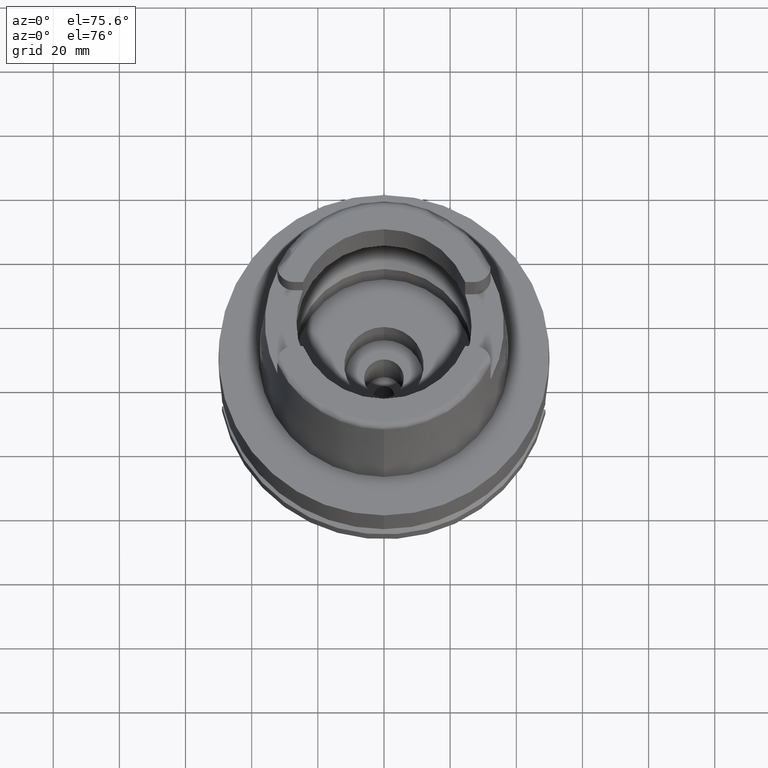
[diagram: clean part render]
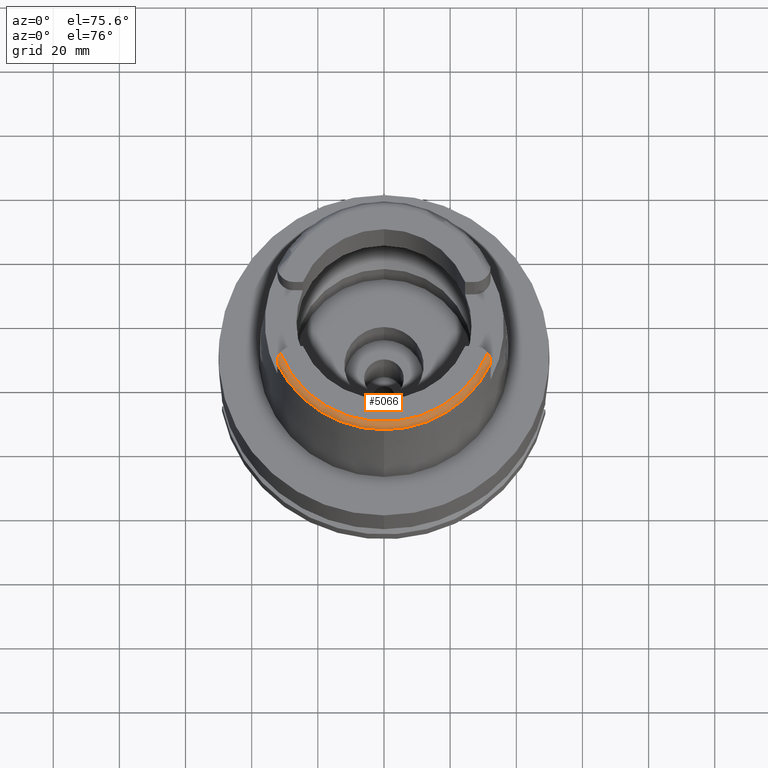
[diagram: same view with one face highlighted and labeled with its STEP entity id]
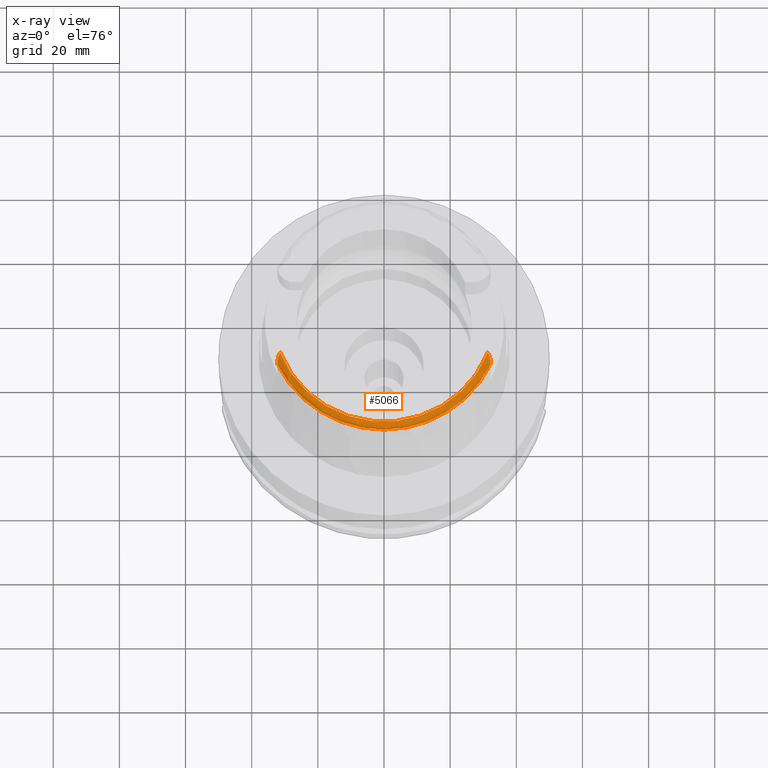
[diagram: x-ray of the same camera — body ghosted, the highlighted face saturated]
A machine part, auxiliary view. The second image highlights one B-rep face of the part: STEP entity #5066.
The next image is the same camera in x-ray: the body ghosted, the highlighted face saturated — about 0% of this face is hidden behind the body in this view.
In plain terms, the highlighted toroidal blend (fillet) surface has major radius 33.5974 mm and minor (blend) radius 2 mm.
Its self-contained STEP definition (entity closure, byte-faithful):
#6 = CARTESIAN_POINT ( 'NONE',  ( -32.23171094347167553, -14.46712823075120014, 49.00013395289571605 ) ) ;
#124 = VERTEX_POINT ( 'NONE', #1293 ) ;
#167 = CARTESIAN_POINT ( 'NONE',  ( 31.98553791915036015, -13.30520670040278652, 49.70524621942952592 ) ) ;
#286 = CARTESIAN_POINT ( 'NONE',  ( 0.0000000000000000000, 0.0000000000000000000, 48.09987853799000135 ) ) ;
#396 = CARTESIAN_POINT ( 'NONE',  ( -32.24999491821000674, -15.06448486630999817, 48.09973212705000378 ) ) ;
#481 = CARTESIAN_POINT ( 'NONE',  ( -31.87922443488010771, -13.01732756175526973, 49.82080695204480492 ) ) ;
#501 = CARTESIAN_POINT ( 'NONE',  ( 32.25000552016999222, -15.06439826353000022, 48.10004191699000131 ) ) ;
#624 = B_SPLINE_CURVE_WITH_KNOTS ( 'NONE', 3,
 ( #4860, #5397, #1535, #3597, #1005, #2713, #2302, #4020, #167, #2882, #5112, #5051, #4694, #4999, #2854, #3761, #1602, #4639, #3851, #747, #5571, #1143, #1169, #1628, #1694, #4601 ),
 .UNSPECIFIED., .F., .F.,
 ( 4, 2, 1, 1, 2, 2, 1, 1, 2, 2, 2, 2, 2, 2, 4 ),
 ( 0.0000000000000000000, 0.2499999999999704126, 0.3124999999999639178, 0.3437499999999611977, 0.3593749999999593103, 0.3749999999999573674, 0.4374999999999556466, 0.4687499999999560352, 0.4843749999999567568, 0.4999999999999575895, 0.6249999999999618083, 0.6874999999999644729, 0.7187499999999678035, 0.7499999999999710232, 1.000000000000000000 ),
 .UNSPECIFIED. ) ;
#679 = CARTESIAN_POINT ( 'NONE',  ( 31.35385269249000473, -12.07161079256999869, 50.00000000000000000 ) ) ;
#704 = ORIENTED_EDGE ( 'NONE', *, *, #1112, .F. ) ;
#710 = CARTESIAN_POINT ( 'NONE',  ( 32.25000000000000000, -14.98829434879570144, 48.40080381485913108 ) ) ;
#726 = ORIENTED_EDGE ( 'NONE', *, *, #3493, .F. ) ;
#747 = CARTESIAN_POINT ( 'NONE',  ( 32.21572274608582376, -14.31196498071052581, 49.12447272064628834 ) ) ;
#787 = CARTESIAN_POINT ( 'NONE',  ( -32.07004199080587625, -13.57330785709262067, 49.58158619972915915 ) ) ;
#807 = DIRECTION ( 'NONE',  ( 0.9332215253017949186, -0.3593015233941980191, 0.0000000000000000000 ) ) ;
#812 = CARTESIAN_POINT ( 'NONE',  ( -32.12253081748730921, -13.78179689435552646, 49.46955099188004112 ) ) ;
#837 = CARTESIAN_POINT ( 'NONE',  ( -32.23862832623470354, -14.55635928709210525, 48.92177505650224134 ) ) ;
#871 = CARTESIAN_POINT ( 'NONE',  ( -32.24916233882190397, -14.77263700673749547, 48.70369021601410964 ) ) ;
#901 = CARTESIAN_POINT ( 'NONE',  ( -32.25000000000000000, -14.89000000000000057, 48.54599893821999501 ) ) ;
#1005 = CARTESIAN_POINT ( 'NONE',  ( 31.89389859079044243, -13.05691725044793472, 49.80495488286983630 ) ) ;
#1112 = EDGE_CURVE ( 'NONE', #5221, #1724, #1837, .T. ) ;
#1143 = CARTESIAN_POINT ( 'NONE',  ( 32.22454672122766794, -14.39152243580885226, 49.06239283984400146 ) ) ;
#1169 = CARTESIAN_POINT ( 'NONE',  ( 32.22728172343637709, -14.41905331685014247, 49.04008642593382916 ) ) ;
#1207 = CARTESIAN_POINT ( 'NONE',  ( -32.14037849970285521, -13.86058879465067584, 49.42463837494213408 ) ) ;
#1247 = DIRECTION ( 'NONE',  ( 0.9060280460804950309, -0.4232176505245974218, 0.0000000000000000000 ) ) ;
#1285 = DIRECTION ( 'NONE',  ( 0.0000000000000000000, 0.0000000000000000000, 1.000000000000000000 ) ) ;
#1293 = CARTESIAN_POINT ( 'NONE',  ( -31.35385269249000473, -12.07161079256999869, 50.00000000000000000 ) ) ;
#1295 = CARTESIAN_POINT ( 'NONE',  ( -32.24474321745522332, -14.66048232297775122, 48.82251155249096541 ) ) ;
#1359 = CARTESIAN_POINT ( 'NONE',  ( -31.99786078065657691, -13.34154365229903583, 49.68944155567197640 ) ) ;
#1429 = EDGE_CURVE ( 'NONE', #4781, #124, #3895, .T. ) ;
#1535 = CARTESIAN_POINT ( 'NONE',  ( 31.68020600901800421, -12.57912254839430943, 49.95560507812035667 ) ) ;
#1602 = CARTESIAN_POINT ( 'NONE',  ( 32.16969002447394388, -14.00056148762274688, 49.34200033525557672 ) ) ;
#1612 = EDGE_LOOP ( 'NONE', ( #1683, #704, #2469, #4759, #4670, #1631, #726 ) ) ;
#1628 = CARTESIAN_POINT ( 'NONE',  ( 32.24707751516175591, -14.63424202878992375, 48.86117232757105455 ) ) ;
#1631 = ORIENTED_EDGE ( 'NONE', *, *, #1429, .F. ) ;
#1683 = ORIENTED_EDGE ( 'NONE', *, *, #2753, .F. ) ;
#1694 = CARTESIAN_POINT ( 'NONE',  ( 32.25000000000000000, -14.78364356167547200, 48.70310294642062843 ) ) ;
#1724 = VERTEX_POINT ( 'NONE', #4941 ) ;
#1756 = EDGE_CURVE ( 'NONE', #5293, #4134, #624, .T. ) ;
#1787 = CARTESIAN_POINT ( 'NONE',  ( -32.00343732436304833, -13.35832898212123609, 49.68202067041841019 ) ) ;
#1820 = CARTESIAN_POINT ( 'NONE',  ( 32.25000000000000000, -14.89000000000000057, 48.54599893821999501 ) ) ;
#1837 = CIRCLE ( 'NONE', #5163, 35.59494289391000166 ) ;
#1879 = EDGE_CURVE ( 'NONE', #5293, #124, #2561, .T. ) ;
#1985 = CARTESIAN_POINT ( 'NONE',  ( 32.25000000000000000, -14.89000000000000057, 48.54599893821999501 ) ) ;
#2083 = CARTESIAN_POINT ( 'NONE',  ( -32.09805753418221741, -13.67958703289202482, 49.52613641132838751 ) ) ;
#2148 = CARTESIAN_POINT ( 'NONE',  ( -32.24999999999999289, -14.83670617076530185, 48.62472171531010190 ) ) ;
#2302 = CARTESIAN_POINT ( 'NONE',  ( 31.96497102139392865, -13.24651202071909495, 49.73002643218659813 ) ) ;
#2435 = EDGE_CURVE ( 'NONE', #4134, #5221, #3529, .T. ) ;
#2469 = ORIENTED_EDGE ( 'NONE', *, *, #2435, .F. ) ;
#2524 = CARTESIAN_POINT ( 'NONE',  ( -32.01516776522989716, -13.39428145071363119, 49.66588911685688146 ) ) ;
#2561 = CIRCLE ( 'NONE', #2919, 33.59743838135999994 ) ;
#2658 = TOROIDAL_SURFACE ( 'NONE', #5270, 33.59743838135999994, 2.000000000000000000 ) ;
#2713 = CARTESIAN_POINT ( 'NONE',  ( 31.94437008002964262, -13.18929048835442508, 49.75357756489393068 ) ) ;
#2753 = EDGE_CURVE ( 'NONE', #1724, #4360, #4003, .T. ) ;
#2806 = CARTESIAN_POINT ( 'NONE',  ( -32.24999491821000674, -15.06448486630999817, 48.09973212705000378 ) ) ;
#2854 = CARTESIAN_POINT ( 'NONE',  ( 32.11113484807066953, -13.73401034042645463, 49.49606143296820449 ) ) ;
#2882 = CARTESIAN_POINT ( 'NONE',  ( 32.01600092206930981, -13.39506294408766252, 49.66618085681955108 ) ) ;
#2919 = AXIS2_PLACEMENT_3D ( 'NONE', #3400, #5085, #807 ) ;
#2924 = CARTESIAN_POINT ( 'NONE',  ( -32.12979535910982776, -13.81342606667118922, 49.45165095091009277 ) ) ;
#2951 = CARTESIAN_POINT ( 'NONE',  ( -32.25000000000000000, -14.89000000000000057, 48.54599893821999501 ) ) ;
#3066 = CARTESIAN_POINT ( 'NONE',  ( -31.52470767083559622, -12.31311791434079872, 49.99999999999998579 ) ) ;
#3161 = CARTESIAN_POINT ( 'NONE',  ( 0.0000000000000000000, 0.0000000000000000000, 48.09987853799000135 ) ) ;
#3167 = B_SPLINE_CURVE_WITH_KNOTS ( 'NONE', 3,
 ( #396, #4284, #4672, #2951 ),
 .UNSPECIFIED., .F., .F.,
 ( 4, 4 ),
 ( 0.0000000000000000000, 1.000000000000000000 ),
 .UNSPECIFIED. ) ;
#3242 = DIRECTION ( 'NONE',  ( 0.0000000000000000000, -1.000000000000000000, 0.0000000000000000000 ) ) ;
#3340 = CARTESIAN_POINT ( 'NONE',  ( -32.17885893273620468, -14.05771647241605038, 49.30352101625374672 ) ) ;
#3356 = CARTESIAN_POINT ( 'NONE',  ( 32.25000000000000000, -15.04642710330570132, 48.25215147444913555 ) ) ;
#3400 = CARTESIAN_POINT ( 'NONE',  ( 0.0000000000000000000, 0.0000000000000000000, 50.00000000000000000 ) ) ;
#3432 = CARTESIAN_POINT ( 'NONE',  ( -32.21996509474334403, -14.33981832330720430, 49.10588560905395639 ) ) ;
#3493 = EDGE_CURVE ( 'NONE', #4360, #4781, #3167, .T. ) ;
#3529 = B_SPLINE_CURVE_WITH_KNOTS ( 'NONE', 3,
 ( #1985, #710, #3356, #5076 ),
 .UNSPECIFIED., .F., .F.,
 ( 4, 4 ),
 ( 0.0000000000000000000, 1.000000000000000000 ),
 .UNSPECIFIED. ) ;
#3597 = CARTESIAN_POINT ( 'NONE',  ( 31.84658748634273806, -12.94550999503682753, 49.84286345540706265 ) ) ;
#3761 = CARTESIAN_POINT ( 'NONE',  ( 32.14579177406184129, -13.87826666992082991, 49.41634588850826049 ) ) ;
#3767 = CARTESIAN_POINT ( 'NONE',  ( -32.23354890689576280, -14.48898959387121188, 48.98144680608039181 ) ) ;
#3791 = CARTESIAN_POINT ( 'NONE',  ( -32.03239459659146604, -13.44814266624167409, 49.64133903012875493 ) ) ;
#3851 = CARTESIAN_POINT ( 'NONE',  ( 32.20550937970598682, -14.23025557932652596, 49.18546282285156224 ) ) ;
#3857 = CARTESIAN_POINT ( 'NONE',  ( -32.23707556746293790, -14.53434182675505681, 48.94165540121103675 ) ) ;
#3895 = B_SPLINE_CURVE_WITH_KNOTS ( 'NONE', 3,
 ( #901, #2148, #871, #1295, #4699, #837, #3857, #3767, #6, #3432, #4673, #3340, #5146, #5057, #1207, #2924, #812, #4644, #2083, #787, #3791, #2524, #1787, #1359, #4784, #481, #5207, #3066, #3910 ),
 .UNSPECIFIED., .F., .F.,
 ( 4, 2, 2, 2, 2, 2, 2, 1, 2, 2, 1, 1, 2, 2, 2, 4 ),
 ( 0.0000000000000000000, 0.1249999999999983347, 0.1874999999999981681, 0.2187500000000014710, 0.2500000000000047740, 0.3750000000000078826, 0.4375000000000104916, 0.4687500000000102141, 0.4843750000000080491, 0.5000000000000058842, 0.5624999999999963363, 0.5937499999999922284, 0.6093749999999905631, 0.6249999999999888978, 0.7499999999999914513, 1.000000000000000000 ),
 .UNSPECIFIED. ) ;
#3910 = CARTESIAN_POINT ( 'NONE',  ( -31.35385269249000473, -12.07161079256999869, 50.00000000000000000 ) ) ;
#4003 = CIRCLE ( 'NONE', #4902, 35.59494289391000166 ) ;
#4020 = CARTESIAN_POINT ( 'NONE',  ( 31.97847427198891879, -13.28476596413266719, 49.71398516990477390 ) ) ;
#4134 = VERTEX_POINT ( 'NONE', #1820 ) ;
#4232 = DIRECTION ( 'NONE',  ( 0.0000000000000000000, 0.0000000000000000000, -1.000000000000000000 ) ) ;
#4284 = CARTESIAN_POINT ( 'NONE',  ( -32.25000000000000000, -15.04649635323360535, 48.25198856053368246 ) ) ;
#4360 = VERTEX_POINT ( 'NONE', #2806 ) ;
#4441 = CARTESIAN_POINT ( 'NONE',  ( -32.25000000000000000, -14.89000000000000057, 48.54599893821999501 ) ) ;
#4578 = DIRECTION ( 'NONE',  ( 0.0000000000000000000, 0.0000000000000000000, -1.000000000000000000 ) ) ;
#4601 = CARTESIAN_POINT ( 'NONE',  ( 32.25000000000000000, -14.89000000000000057, 48.54599893821999501 ) ) ;
#4634 = CARTESIAN_POINT ( 'NONE',  ( 0.0000000000000000000, 0.0000000000000000000, 48.00000000000000000 ) ) ;
#4639 = CARTESIAN_POINT ( 'NONE',  ( 32.19755382683911193, -14.17407029077249803, 49.22525106811080775 ) ) ;
#4644 = CARTESIAN_POINT ( 'NONE',  ( -32.11917241735947925, -13.76746355291490076, 49.47757654508900060 ) ) ;
#4665 = DIRECTION ( 'NONE',  ( -0.0004184165975219878483, -0.9999999124637716230, 0.0000000000000000000 ) ) ;
#4670 = ORIENTED_EDGE ( 'NONE', *, *, #1879, .T. ) ;
#4672 = CARTESIAN_POINT ( 'NONE',  ( -32.25000000000000000, -14.98833473113027104, 48.40074416425701287 ) ) ;
#4673 = CARTESIAN_POINT ( 'NONE',  ( -32.20670518801939153, -14.23093752559895009, 49.18701995770135937 ) ) ;
#4694 = CARTESIAN_POINT ( 'NONE',  ( 32.09754922088916373, -13.67962451768944376, 49.52543664925310196 ) ) ;
#4699 = CARTESIAN_POINT ( 'NONE',  ( -32.24273642753888680, -14.62042380477105930, 48.86218009555337005 ) ) ;
#4759 = ORIENTED_EDGE ( 'NONE', *, *, #1756, .F. ) ;
#4781 = VERTEX_POINT ( 'NONE', #4441 ) ;
#4784 = CARTESIAN_POINT ( 'NONE',  ( -31.93914205226965208, -13.16844874541496857, 49.76466276297157521 ) ) ;
#4860 = CARTESIAN_POINT ( 'NONE',  ( 31.35385269249000473, -12.07161079256999869, 50.00000000000000000 ) ) ;
#4902 = AXIS2_PLACEMENT_3D ( 'NONE', #3161, #4578, #3242 ) ;
#4941 = CARTESIAN_POINT ( 'NONE',  ( 1.065814103639999922E-14, -35.59494289391000166, 48.09987853799000135 ) ) ;
#4999 = CARTESIAN_POINT ( 'NONE',  ( 32.10643525813950561, -13.71487809587211260, 49.50649786269028141 ) ) ;
#5051 = CARTESIAN_POINT ( 'NONE',  ( 32.08388291312730445, -13.62665286574223344, 49.55348990322032421 ) ) ;
#5057 = CARTESIAN_POINT ( 'NONE',  ( -32.15004909492789409, -13.90689452265327830, 49.39713825543489634 ) ) ;
#5066 = ADVANCED_FACE ( 'NONE', ( #5542 ), #2658, .T. ) ;
#5076 = CARTESIAN_POINT ( 'NONE',  ( 32.25000552016999222, -15.06439826353000022, 48.10004191699000131 ) ) ;
#5085 = DIRECTION ( 'NONE',  ( 0.0000000000000000000, 0.0000000000000000000, -1.000000000000000000 ) ) ;
#5112 = CARTESIAN_POINT ( 'NONE',  ( 32.04960116379462676, -13.50244670472032738, 49.61646301467141029 ) ) ;
#5146 = CARTESIAN_POINT ( 'NONE',  ( -32.16824828830154104, -13.99832949928151749, 49.34148795836806300 ) ) ;
#5163 = AXIS2_PLACEMENT_3D ( 'NONE', #286, #4232, #1247 ) ;
#5207 = CARTESIAN_POINT ( 'NONE',  ( -31.68066924257055561, -12.58024699556831294, 49.95520173801120478 ) ) ;
#5221 = VERTEX_POINT ( 'NONE', #501 ) ;
#5270 = AXIS2_PLACEMENT_3D ( 'NONE', #4634, #1285, #4665 ) ;
#5293 = VERTEX_POINT ( 'NONE', #679 ) ;
#5397 = CARTESIAN_POINT ( 'NONE',  ( 31.52484354872736461, -12.31330998061167747, 50.00000000000000711 ) ) ;
#5542 = FACE_OUTER_BOUND ( 'NONE', #1612, .T. ) ;
#5571 = CARTESIAN_POINT ( 'NONE',  ( 32.21884039756032792, -14.33877359499827975, 49.10392473085847342 ) ) ;